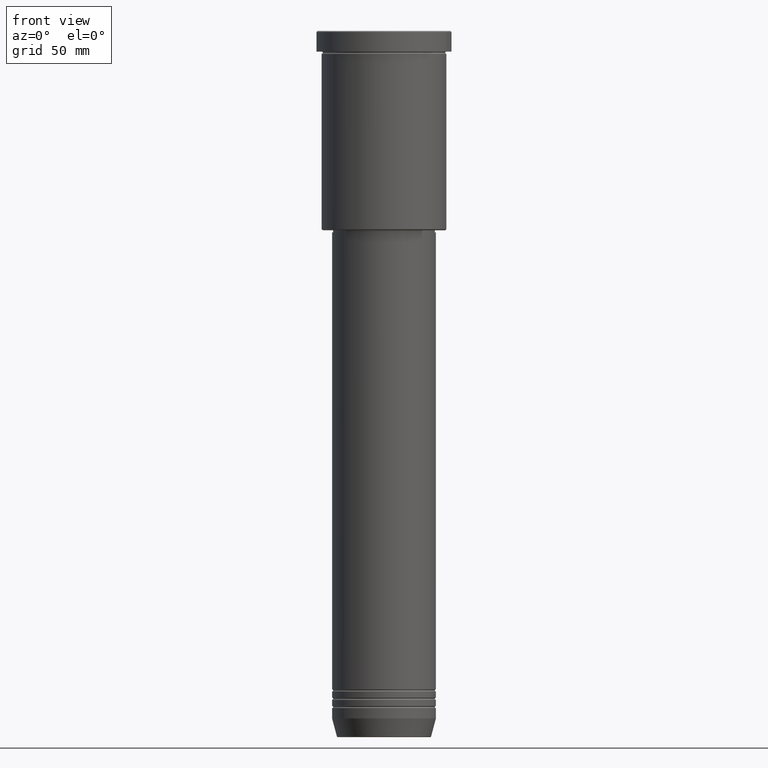
[diagram: clean part render]
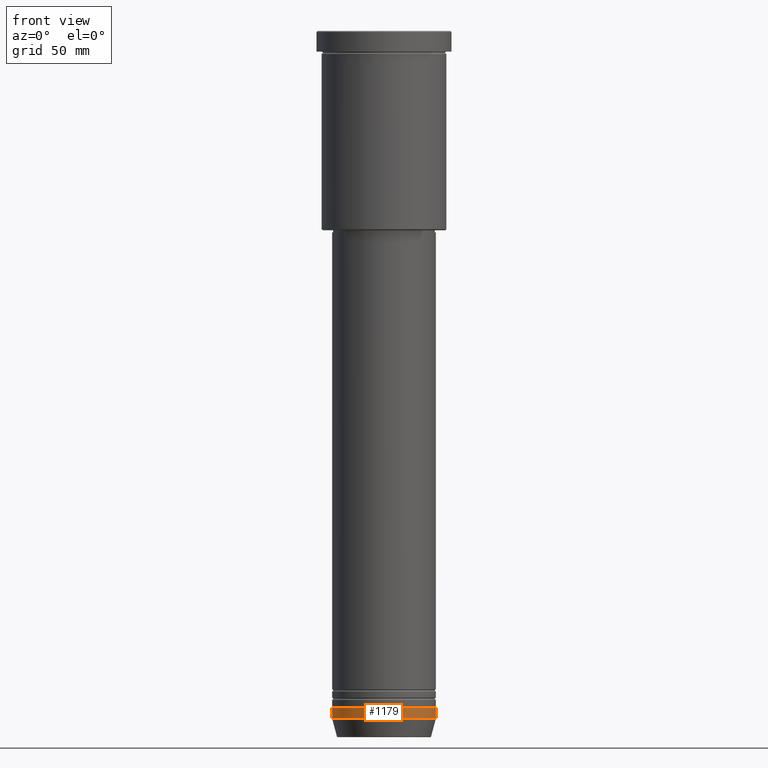
[diagram: same view with one face highlighted and labeled with its STEP entity id]
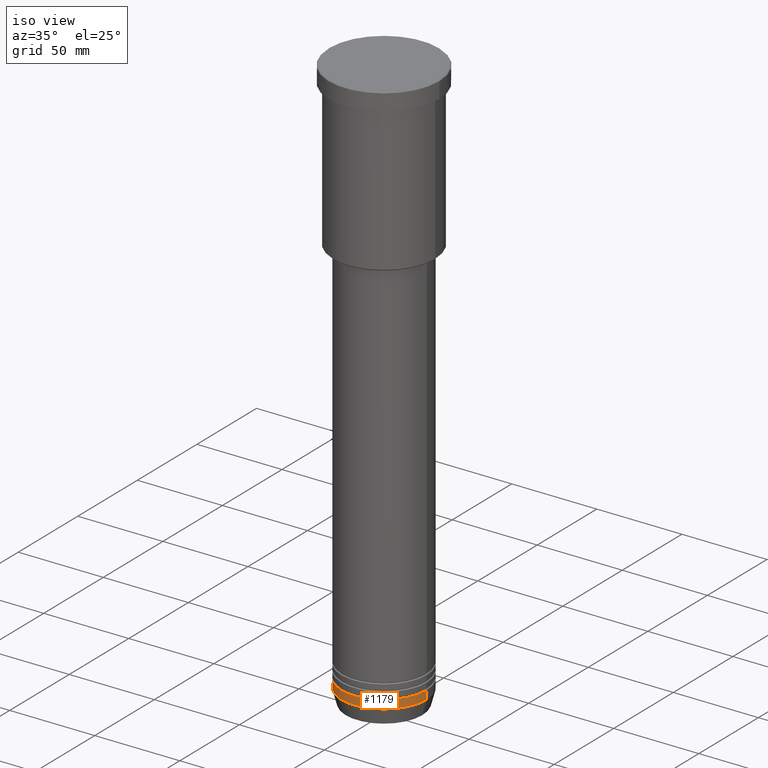
[diagram: same view with one face highlighted and labeled with its STEP entity id]
A machine part, front view. The second image highlights one B-rep face of the part: STEP entity #1179.
A second angle (iso view) of the same face is appended — the face is thin or edge-on in the first view.
In plain terms, the highlighted cylindrical surface (partial cylindrical patch) has radius 25 mm, axis along (-0, -0, 1).
Its self-contained STEP definition (entity closure, byte-faithful):
#38 = DIRECTION ( 'NONE',  ( 1.000000000000000000, 0.000000000000000000, 0.000000000000000000 ) ) ;
#116 = DIRECTION ( 'NONE',  ( -0.000000000000000000, -0.000000000000000000, 1.000000000000000000 ) ) ;
#119 = DIRECTION ( 'NONE',  ( -0.000000000000000000, -0.000000000000000000, 1.000000000000000000 ) ) ;
#142 = CARTESIAN_POINT ( 'NONE',  ( 25.00000000000000000, 0.000000000000000000, 0.000000000000000000 ) ) ;
#144 = CARTESIAN_POINT ( 'NONE',  ( -25.00000000000000000, 3.061616997868383043E-15, 0.000000000000000000 ) ) ;
#150 = VERTEX_POINT ( 'NONE', #306 ) ;
#168 = EDGE_CURVE ( 'NONE', #754, #928, #456, .T. ) ;
#196 = CARTESIAN_POINT ( 'NONE',  ( 0.000000000000000000, 0.000000000000000000, -326.0000000000000568 ) ) ;
#199 = CARTESIAN_POINT ( 'NONE',  ( 0.000000000000000000, 0.000000000000000000, 0.000000000000000000 ) ) ;
#204 = EDGE_CURVE ( 'NONE', #1094, #150, #796, .T. ) ;
#263 = ORIENTED_EDGE ( 'NONE', *, *, #204, .F. ) ;
#266 = VECTOR ( 'NONE', #574, 1000.000000000000000 ) ;
#306 = CARTESIAN_POINT ( 'NONE',  ( 25.00000000000000000, 0.000000000000000000, -326.0000000000000568 ) ) ;
#347 = EDGE_CURVE ( 'NONE', #928, #150, #585, .T. ) ;
#349 = EDGE_CURVE ( 'NONE', #754, #1094, #871, .T. ) ;
#363 = AXIS2_PLACEMENT_3D ( 'NONE', #578, #116, #391 ) ;
#391 = DIRECTION ( 'NONE',  ( 1.000000000000000000, 0.000000000000000000, 0.000000000000000000 ) ) ;
#456 = CIRCLE ( 'NONE', #363, 25.00000000000000000 ) ;
#466 = CYLINDRICAL_SURFACE ( 'NONE', #747, 25.00000000000000000 ) ;
#526 = ORIENTED_EDGE ( 'NONE', *, *, #349, .F. ) ;
#562 = DIRECTION ( 'NONE',  ( 1.000000000000000000, 0.000000000000000000, 0.000000000000000000 ) ) ;
#574 = DIRECTION ( 'NONE',  ( -0.000000000000000000, -0.000000000000000000, 1.000000000000000000 ) ) ;
#578 = CARTESIAN_POINT ( 'NONE',  ( 0.000000000000000000, 0.000000000000000000, -331.0000000000000000 ) ) ;
#585 = LINE ( 'NONE', #142, #993 ) ;
#629 = CARTESIAN_POINT ( 'NONE',  ( -25.00000000000000000, 3.061616997868383043E-15, -331.0000000000000000 ) ) ;
#681 = ORIENTED_EDGE ( 'NONE', *, *, #168, .T. ) ;
#691 = EDGE_LOOP ( 'NONE', ( #526, #681, #774, #263 ) ) ;
#747 = AXIS2_PLACEMENT_3D ( 'NONE', #199, #832, #562 ) ;
#754 = VERTEX_POINT ( 'NONE', #629 ) ;
#774 = ORIENTED_EDGE ( 'NONE', *, *, #347, .T. ) ;
#796 = CIRCLE ( 'NONE', #1110, 25.00000000000000000 ) ;
#807 = CARTESIAN_POINT ( 'NONE',  ( -25.00000000000000000, 3.061616997868383043E-15, -326.0000000000000568 ) ) ;
#832 = DIRECTION ( 'NONE',  ( -0.000000000000000000, -0.000000000000000000, 1.000000000000000000 ) ) ;
#871 = LINE ( 'NONE', #144, #266 ) ;
#879 = CARTESIAN_POINT ( 'NONE',  ( 25.00000000000000000, 0.000000000000000000, -331.0000000000000000 ) ) ;
#928 = VERTEX_POINT ( 'NONE', #879 ) ;
#993 = VECTOR ( 'NONE', #1040, 1000.000000000000000 ) ;
#1021 = FACE_OUTER_BOUND ( 'NONE', #691, .T. ) ;
#1040 = DIRECTION ( 'NONE',  ( -0.000000000000000000, -0.000000000000000000, 1.000000000000000000 ) ) ;
#1094 = VERTEX_POINT ( 'NONE', #807 ) ;
#1110 = AXIS2_PLACEMENT_3D ( 'NONE', #196, #119, #38 ) ;
#1179 = ADVANCED_FACE ( 'NONE', ( #1021 ), #466, .T. ) ;